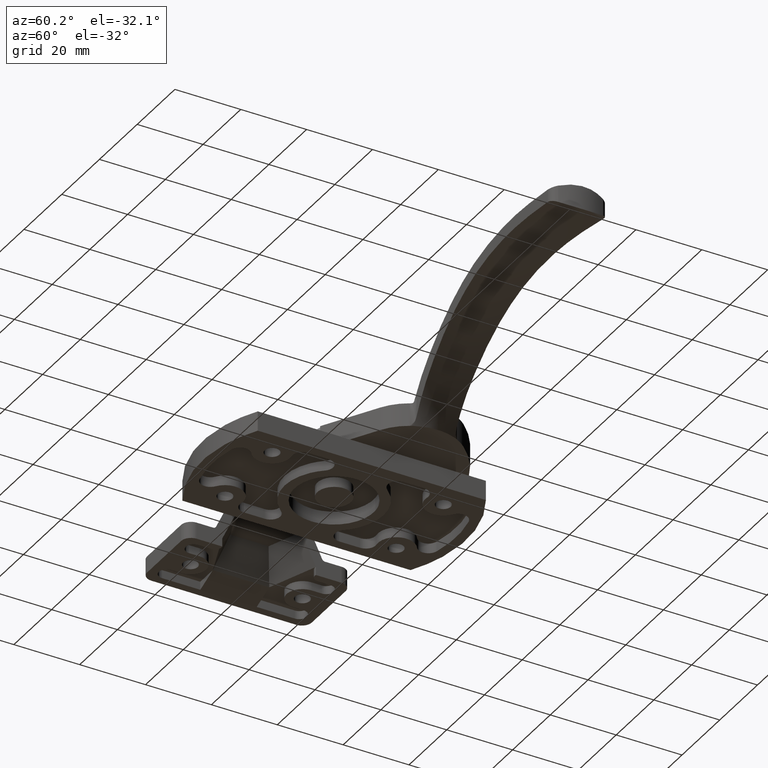
[diagram: clean part render]
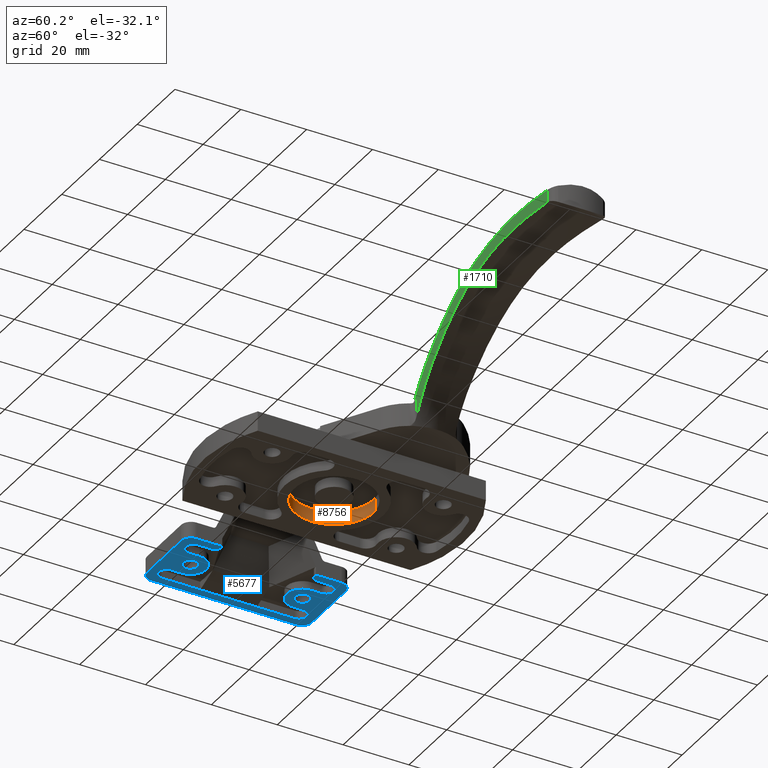
[diagram: same view with three faces highlighted in distinct colors, each labeled with its STEP entity id]
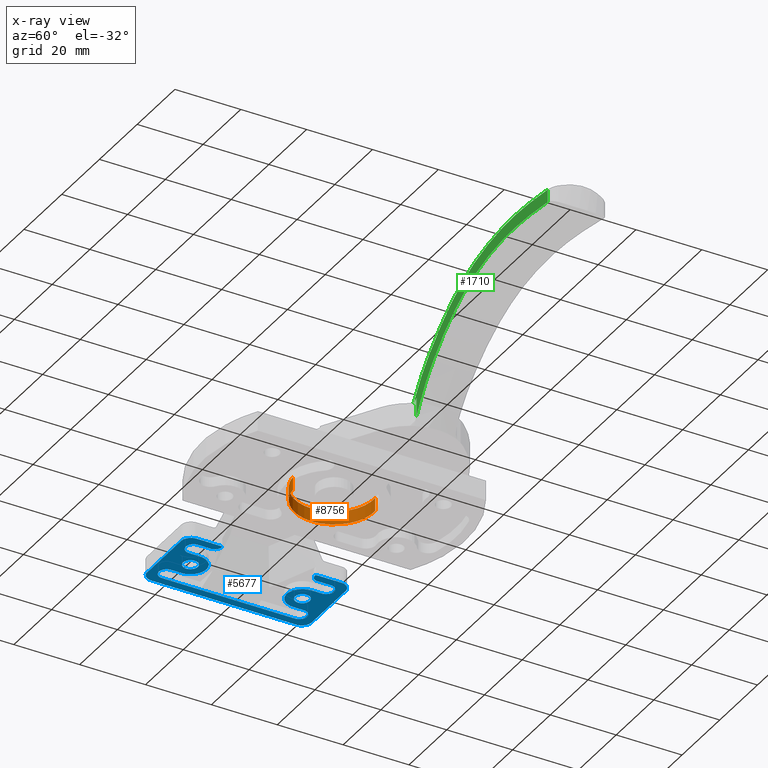
[diagram: x-ray of the same camera — body ghosted, the three highlighted faces saturated]
A machine part, auxiliary view with three faces highlighted in distinct colors.
The next image is the same camera in x-ray (body ghosted, the three faces saturated) — at least one of them is partly hidden behind the body in this view.
Their STEP definitions:

[orange] entity #8756 — the highlighted face is a freeform B-spline surface patch.
#8595=CARTESIAN_POINT('',(0.941509148841182,11.963008004789110,4.0));
#8596=VERTEX_POINT('',#8595);
#8610=CARTESIAN_POINT('',(0.941509148841184,11.963008004789110,2.081668E-017));
#8611=VERTEX_POINT('',#8610);
#8612=CARTESIAN_POINT('',(0.941509148841182,11.963008004789110,4.0));
#8613=CARTESIAN_POINT('',(0.941509148841184,11.963008004789110,2.081668E-017));
#8614=QUASI_UNIFORM_CURVE('',1,(#8612,#8613),.UNSPECIFIED.,.F.,.U.);
#8615=EDGE_CURVE('',#8596,#8611,#8614,.T.);
#8632=CARTESIAN_POINT('',(-0.941509148841184,-11.963008004789110,2.081668E-017));
#8633=VERTEX_POINT('',#8632);
#8649=CARTESIAN_POINT('',(-0.941509148841180,-11.963008004789110,4.0));
#8650=VERTEX_POINT('',#8649);
#8651=CARTESIAN_POINT('',(-0.941509148841180,-11.963008004789110,4.0));
#8652=CARTESIAN_POINT('',(-0.941509148841184,-11.963008004789110,2.081668E-017));
#8653=QUASI_UNIFORM_CURVE('',1,(#8651,#8652),.UNSPECIFIED.,.F.,.U.);
#8654=EDGE_CURVE('',#8650,#8633,#8653,.T.);
#8674=CARTESIAN_POINT('',(-0.941509148734146,-11.963008004797530,4.100000000000000));
#8675=CARTESIAN_POINT('',(-12.904517153531678,-11.021498856063385,4.100000000000000));
#8676=CARTESIAN_POINT('',(-11.963008004797530,0.941509148734146,4.100000000000000));
#8677=CARTESIAN_POINT('',(-11.021498856063385,12.904517153531678,4.100000000000000));
#8678=CARTESIAN_POINT('',(0.941509148734146,11.963008004797530,4.100000000000000));
#8679=CARTESIAN_POINT('',(-0.941509148734146,-11.963008004797530,-0.102500000000000));
#8680=CARTESIAN_POINT('',(-12.904517153531678,-11.021498856063385,-0.102500000000000));
#8681=CARTESIAN_POINT('',(-11.963008004797530,0.941509148734146,-0.102500000000000));
#8682=CARTESIAN_POINT('',(-11.021498856063385,12.904517153531678,-0.102500000000000));
#8683=CARTESIAN_POINT('',(0.941509148734146,11.963008004797530,-0.102500000000000));
#8691=(BOUNDED_SURFACE()B_SPLINE_SURFACE(2,1,((#8674,#8679),(#8675,#8680),(#8676,#8681),(#8677,#8682),(#8678,#8683)),.UNSPECIFIED.,.F.,.F.,.U.)B_SPLINE_SURFACE_WITH_KNOTS((3,2,3),(2,2),(0.0,19.882250993908560,39.764501987817120),(0.0,4.202500000000000),.UNSPECIFIED.)GEOMETRIC_REPRESENTATION_ITEM()RATIONAL_B_SPLINE_SURFACE(((1.0,1.0),(0.707106781186548,0.707106781186548),(1.0,1.0),(0.707106781186548,0.707106781186548),(1.0,1.0)))REPRESENTATION_ITEM('')SURFACE());
#8692=CARTESIAN_POINT('',(-12.0,0.0,4.0));
#8693=VERTEX_POINT('',#8692);
#8694=CARTESIAN_POINT('',(0.941509148841182,11.963008004789106,4.0));
#8695=CARTESIAN_POINT('',(0.471481284199572,11.999999999999998,4.0));
#8696=CARTESIAN_POINT('',(0.0,12.0,4.0));
#8697=CARTESIAN_POINT('',(-12.0,12.0,4.000000000000000));
#8698=CARTESIAN_POINT('',(-12.0,0.0,4.0));
#8706=(BOUNDED_CURVE()B_SPLINE_CURVE(2,(#8694,#8695,#8696,#8697,#8698),.UNSPECIFIED.,.F.,.U.)B_SPLINE_CURVE_WITH_KNOTS((3,2,3),(0.236331300629699,0.250000000000000,0.500000000000000),.UNSPECIFIED.)CURVE()GEOMETRIC_REPRESENTATION_ITEM()RATIONAL_B_SPLINE_CURVE((0.969723356165414,0.983986122577757,1.0,0.707106781186548,1.0))REPRESENTATION_ITEM(''));
#8707=EDGE_CURVE('',#8596,#8693,#8706,.T.);
#8708=ORIENTED_EDGE('',*,*,#8707,.T.);
#8709=CARTESIAN_POINT('',(-12.0,0.0,4.0));
#8710=CARTESIAN_POINT('',(-12.000000000000002,-11.092685899699395,4.0));
#8711=CARTESIAN_POINT('',(-0.941509148841180,-11.963008004789106,4.000000000000001));
#8719=(BOUNDED_CURVE()B_SPLINE_CURVE(2,(#8709,#8710,#8711),.UNSPECIFIED.,.F.,.U.)B_SPLINE_CURVE_WITH_KNOTS((3,3),(0.500000000000000,0.736331300629700),.UNSPECIFIED.)CURVE()GEOMETRIC_REPRESENTATION_ITEM()RATIONAL_B_SPLINE_CURVE((1.0,0.723120658608790,0.969723356165414))REPRESENTATION_ITEM(''));
#8720=EDGE_CURVE('',#8693,#8650,#8719,.T.);
#8721=ORIENTED_EDGE('',*,*,#8720,.T.);
#8722=ORIENTED_EDGE('',*,*,#8654,.T.);
#8723=CARTESIAN_POINT('',(-12.0,0.0,0.0));
#8724=VERTEX_POINT('',#8723);
#8725=CARTESIAN_POINT('',(-12.0,0.0,0.0));
#8726=CARTESIAN_POINT('',(-12.000000000000002,-11.092685899699395,0.0));
#8727=CARTESIAN_POINT('',(-0.941509148841184,-11.963008004789106,2.081668E-017));
#8735=(BOUNDED_CURVE()B_SPLINE_CURVE(2,(#8725,#8726,#8727),.UNSPECIFIED.,.F.,.U.)B_SPLINE_CURVE_WITH_KNOTS((3,3),(0.500000000000000,0.736331300629700),.UNSPECIFIED.)CURVE()GEOMETRIC_REPRESENTATION_ITEM()RATIONAL_B_SPLINE_CURVE((1.0,0.723120658608790,0.969723356165414))REPRESENTATION_ITEM(''));
#8736=EDGE_CURVE('',#8724,#8633,#8735,.T.);
#8737=ORIENTED_EDGE('',*,*,#8736,.F.);
#8738=CARTESIAN_POINT('',(0.941509148841184,11.963008004789106,2.081668E-017));
#8739=CARTESIAN_POINT('',(0.471481284199573,11.999999999999998,0.0));
#8740=CARTESIAN_POINT('',(0.0,12.0,0.0));
#8741=CARTESIAN_POINT('',(-12.0,12.0,0.0));
#8742=CARTESIAN_POINT('',(-12.0,0.0,0.0));
#8750=(BOUNDED_CURVE()B_SPLINE_CURVE(2,(#8738,#8739,#8740,#8741,#8742),.UNSPECIFIED.,.F.,.U.)B_SPLINE_CURVE_WITH_KNOTS((3,2,3),(0.236331300629699,0.250000000000000,0.500000000000000),.UNSPECIFIED.)CURVE()GEOMETRIC_REPRESENTATION_ITEM()RATIONAL_B_SPLINE_CURVE((0.969723356165414,0.983986122577757,1.0,0.707106781186548,1.0))REPRESENTATION_ITEM(''));
#8751=EDGE_CURVE('',#8611,#8724,#8750,.T.);
#8752=ORIENTED_EDGE('',*,*,#8751,.F.);
#8753=ORIENTED_EDGE('',*,*,#8615,.F.);
#8754=EDGE_LOOP('',(#8708,#8721,#8722,#8737,#8752,#8753));
#8755=FACE_OUTER_BOUND('',#8754,.T.);
#8756=ADVANCED_FACE('',(#8755),#8691,.F.);

[blue] entity #5677 — the highlighted face is a freeform B-spline surface patch.
#2646=CARTESIAN_POINT('',(-46.234422971808662,14.765728565707141,-8.518285E-017));
#2647=VERTEX_POINT('',#2646);
#2653=CARTESIAN_POINT('',(-48.750000000000000,17.0,0.0));
#2654=VERTEX_POINT('',#2653);
#2655=CARTESIAN_POINT('',(-46.234422971808662,14.765728565707150,-8.518285E-017));
#2656=CARTESIAN_POINT('',(-46.366745730567317,14.750000000000007,0.0));
#2657=CARTESIAN_POINT('',(-46.500000000000000,14.750000000000000,0.0));
#2658=CARTESIAN_POINT('',(-48.750000000000007,14.750000000000007,0.0));
#2659=CARTESIAN_POINT('',(-48.750000000000000,17.0,0.0));
#2667=(BOUNDED_CURVE()B_SPLINE_CURVE(2,(#2655,#2656,#2657,#2658,#2659),.UNSPECIFIED.,.F.,.U.)B_SPLINE_CURVE_WITH_KNOTS((3,2,3),(0.229562473483326,0.250000000000000,0.500000000000000),.UNSPECIFIED.)CURVE()GEOMETRIC_REPRESENTATION_ITEM()RATIONAL_B_SPLINE_CURVE((0.956026754124540,0.976055948295784,1.0,0.707106781186547,1.0))REPRESENTATION_ITEM(''));
#2668=EDGE_CURVE('',#2647,#2654,#2667,.T.);
#2670=CARTESIAN_POINT('',(-46.637359214265118,19.245803296430140,-8.326673E-017));
#2671=VERTEX_POINT('',#2670);
#2672=CARTESIAN_POINT('',(-48.750000000000000,17.0,0.0));
#2673=CARTESIAN_POINT('',(-48.750000000000000,19.116588649949211,0.0));
#2674=CARTESIAN_POINT('',(-46.637359214265111,19.245803296430143,-8.326673E-017));
#2682=(BOUNDED_CURVE()B_SPLINE_CURVE(2,(#2672,#2673,#2674),.UNSPECIFIED.,.F.,.U.)B_SPLINE_CURVE_WITH_KNOTS((3,3),(0.500000000000000,0.739332962194074),.UNSPECIFIED.)CURVE()GEOMETRIC_REPRESENTATION_ITEM()RATIONAL_B_SPLINE_CURVE((1.0,0.719603993339277,0.976072041570556))REPRESENTATION_ITEM(''));
#2683=EDGE_CURVE('',#2654,#2671,#2682,.T.);
#2772=CARTESIAN_POINT('',(-44.250000000000000,17.0,0.0));
#2773=VERTEX_POINT('',#2772);
#2774=CARTESIAN_POINT('',(-46.637359214265118,19.245803296430136,-8.326673E-017));
#2775=CARTESIAN_POINT('',(-46.568743717734385,19.249999999999993,0.0));
#2776=CARTESIAN_POINT('',(-46.500000000000000,19.250000000000000,0.0));
#2777=CARTESIAN_POINT('',(-44.250000000000007,19.250000000000000,0.0));
#2778=CARTESIAN_POINT('',(-44.250000000000000,17.0,0.0));
#2786=(BOUNDED_CURVE()B_SPLINE_CURVE(2,(#2774,#2775,#2776,#2777,#2778),.UNSPECIFIED.,.F.,.U.)B_SPLINE_CURVE_WITH_KNOTS((3,2,3),(0.739332962194075,0.750000000000000,1.0),.UNSPECIFIED.)CURVE()GEOMETRIC_REPRESENTATION_ITEM()RATIONAL_B_SPLINE_CURVE((0.976072041570556,0.987502787847271,1.0,0.707106781186547,1.0))REPRESENTATION_ITEM(''));
#2787=EDGE_CURVE('',#2671,#2773,#2786,.T.);
#2789=CARTESIAN_POINT('',(-44.250000000000000,17.0,0.0));
#2790=CARTESIAN_POINT('',(-44.249999999999993,15.001607316994265,0.0));
#2791=CARTESIAN_POINT('',(-46.234422971808662,14.765728565707141,-8.518285E-017));
#2799=(BOUNDED_CURVE()B_SPLINE_CURVE(2,(#2789,#2790,#2791),.UNSPECIFIED.,.F.,.U.)B_SPLINE_CURVE_WITH_KNOTS((3,3),(0.0,0.229562473483326),.UNSPECIFIED.)CURVE()GEOMETRIC_REPRESENTATION_ITEM()RATIONAL_B_SPLINE_CURVE((1.0,0.731050832890764,0.956026754124540))REPRESENTATION_ITEM(''));
#2800=EDGE_CURVE('',#2773,#2647,#2799,.T.);
#2974=CARTESIAN_POINT('',(-46.323467033540368,-14.756935999184829,-8.326673E-017));
#2975=VERTEX_POINT('',#2974);
#2981=CARTESIAN_POINT('',(-44.250000000000000,-17.0,0.0));
#2982=VERTEX_POINT('',#2981);
#2983=CARTESIAN_POINT('',(-44.250000000000000,-17.0,0.0));
#2984=CARTESIAN_POINT('',(-44.249999999999993,-14.920121395763180,0.0));
#2985=CARTESIAN_POINT('',(-46.323467033540375,-14.756935999184826,-8.326673E-017));
#2993=(BOUNDED_CURVE()B_SPLINE_CURVE(2,(#2983,#2984,#2985),.UNSPECIFIED.,.F.,.U.)B_SPLINE_CURVE_WITH_KNOTS((3,3),(0.0,0.236331300468916),.UNSPECIFIED.)CURVE()GEOMETRIC_REPRESENTATION_ITEM()RATIONAL_B_SPLINE_CURVE((1.0,0.723120658797160,0.969723355829870))REPRESENTATION_ITEM(''));
#2994=EDGE_CURVE('',#2982,#2975,#2993,.T.);
#2996=CARTESIAN_POINT('',(-46.676532966459632,-19.243064000815171,-8.326673E-017));
#2997=VERTEX_POINT('',#2996);
#2998=CARTESIAN_POINT('',(-46.676532966459639,-19.243064000815171,-8.326673E-017));
#2999=CARTESIAN_POINT('',(-46.588402741844213,-19.249999999999996,0.0));
#3000=CARTESIAN_POINT('',(-46.500000000000000,-19.250000000000000,0.0));
#3001=CARTESIAN_POINT('',(-44.250000000000007,-19.250000000000000,0.0));
#3002=CARTESIAN_POINT('',(-44.250000000000000,-17.0,0.0));
#3010=(BOUNDED_CURVE()B_SPLINE_CURVE(2,(#2998,#2999,#3000,#3001,#3002),.UNSPECIFIED.,.F.,.U.)B_SPLINE_CURVE_WITH_KNOTS((3,2,3),(0.736331300468916,0.750000000000000,1.0),.UNSPECIFIED.)CURVE()GEOMETRIC_REPRESENTATION_ITEM()RATIONAL_B_SPLINE_CURVE((0.969723355829871,0.983986122389388,1.0,0.707106781186547,1.0))REPRESENTATION_ITEM(''));
#3011=EDGE_CURVE('',#2997,#2982,#3010,.T.);
#3117=CARTESIAN_POINT('',(-48.750000000000000,-17.0,0.0));
#3118=VERTEX_POINT('',#3117);
#3119=CARTESIAN_POINT('',(-48.750000000000000,-17.0,0.0));
#3120=CARTESIAN_POINT('',(-48.750000000000000,-19.079878604236846,0.0));
#3121=CARTESIAN_POINT('',(-46.676532966459639,-19.243064000815171,-8.326673E-017));
#3129=(BOUNDED_CURVE()B_SPLINE_CURVE(2,(#3119,#3120,#3121),.UNSPECIFIED.,.F.,.U.)B_SPLINE_CURVE_WITH_KNOTS((3,3),(0.500000000000000,0.736331300468917),.UNSPECIFIED.)CURVE()GEOMETRIC_REPRESENTATION_ITEM()RATIONAL_B_SPLINE_CURVE((1.0,0.723120658797159,0.969723355829874))REPRESENTATION_ITEM(''));
#3130=EDGE_CURVE('',#3118,#2997,#3129,.T.);
#3132=CARTESIAN_POINT('',(-46.323467033540368,-14.756935999184833,-8.326673E-017));
#3133=CARTESIAN_POINT('',(-46.411597258155780,-14.750000000000000,0.0));
#3134=CARTESIAN_POINT('',(-46.500000000000000,-14.750000000000000,0.0));
#3135=CARTESIAN_POINT('',(-48.750000000000007,-14.750000000000007,0.0));
#3136=CARTESIAN_POINT('',(-48.750000000000000,-17.0,0.0));
#3144=(BOUNDED_CURVE()B_SPLINE_CURVE(2,(#3132,#3133,#3134,#3135,#3136),.UNSPECIFIED.,.F.,.U.)B_SPLINE_CURVE_WITH_KNOTS((3,2,3),(0.236331300468916,0.250000000000000,0.500000000000000),.UNSPECIFIED.)CURVE()GEOMETRIC_REPRESENTATION_ITEM()RATIONAL_B_SPLINE_CURVE((0.969723355829871,0.983986122389387,1.0,0.707106781186547,1.0))REPRESENTATION_ITEM(''));
#3145=EDGE_CURVE('',#2975,#3118,#3144,.T.);
#3395=CARTESIAN_POINT('',(-56.0,-8.567146208505172,0.0));
#3396=VERTEX_POINT('',#3395);
#3424=CARTESIAN_POINT('',(-56.0,8.567146208505200,0.0));
#3425=VERTEX_POINT('',#3424);
#3445=CARTESIAN_POINT('',(-56.0,8.567146208505200,0.0));
#3446=CARTESIAN_POINT('',(-56.0,-8.567146208505172,0.0));
#3447=QUASI_UNIFORM_CURVE('',1,(#3445,#3446),.UNSPECIFIED.,.F.,.U.);
#3448=EDGE_CURVE('',#3425,#3396,#3447,.T.);
#4740=CARTESIAN_POINT('',(-56.0,-20.149999999999999,0.0));
#4741=VERTEX_POINT('',#4740);
#4742=CARTESIAN_POINT('',(-51.299999999999997,-20.149999999999999,0.0));
#4743=VERTEX_POINT('',#4742);
#4744=CARTESIAN_POINT('',(-56.0,-20.149999999999999,0.0));
#4745=CARTESIAN_POINT('',(-55.999999999999986,-22.500000000000004,0.0));
#4746=CARTESIAN_POINT('',(-53.650000000000013,-22.500000000000000,0.0));
#4747=CARTESIAN_POINT('',(-51.300000000000011,-22.500000000000004,0.0));
#4748=CARTESIAN_POINT('',(-51.299999999999997,-20.149999999999999,0.0));
#4756=(BOUNDED_CURVE()B_SPLINE_CURVE(2,(#4744,#4745,#4746,#4747,#4748),.UNSPECIFIED.,.F.,.U.)B_SPLINE_CURVE_WITH_KNOTS((3,2,3),(0.0,0.500000000000000,1.0),.UNSPECIFIED.)CURVE()GEOMETRIC_REPRESENTATION_ITEM()RATIONAL_B_SPLINE_CURVE((1.0,0.707106781186547,1.0,0.707106781186547,1.0))REPRESENTATION_ITEM(''));
#4757=EDGE_CURVE('',#4741,#4743,#4756,.T.);
#4796=CARTESIAN_POINT('',(-56.0,20.149999999999999,0.0));
#4797=VERTEX_POINT('',#4796);
#4798=CARTESIAN_POINT('',(-56.0,20.149999999999999,0.0));
#4799=CARTESIAN_POINT('',(-56.0,8.567146208505200,0.0));
#4800=QUASI_UNIFORM_CURVE('',1,(#4798,#4799),.UNSPECIFIED.,.F.,.U.);
#4801=EDGE_CURVE('',#4797,#3425,#4800,.T.);
#4831=CARTESIAN_POINT('',(-51.299999999999997,20.149999999999999,0.0));
#4832=VERTEX_POINT('',#4831);
#4833=CARTESIAN_POINT('',(-51.299999999999997,20.149999999999999,0.0));
#4834=CARTESIAN_POINT('',(-51.300000000000011,22.500000000000004,0.0));
#4835=CARTESIAN_POINT('',(-53.650000000000013,22.500000000000000,0.0));
#4836=CARTESIAN_POINT('',(-55.999999999999986,22.500000000000004,0.0));
#4837=CARTESIAN_POINT('',(-56.0,20.149999999999999,0.0));
#4845=(BOUNDED_CURVE()B_SPLINE_CURVE(2,(#4833,#4834,#4835,#4836,#4837),.UNSPECIFIED.,.F.,.U.)B_SPLINE_CURVE_WITH_KNOTS((3,2,3),(0.0,0.500000000000000,1.0),.UNSPECIFIED.)CURVE()GEOMETRIC_REPRESENTATION_ITEM()RATIONAL_B_SPLINE_CURVE((1.0,0.707106781186547,1.0,0.707106781186547,1.0))REPRESENTATION_ITEM(''));
#4846=EDGE_CURVE('',#4832,#4797,#4845,.T.);
#4863=CARTESIAN_POINT('',(-51.299999999999997,17.0,0.0));
#4864=VERTEX_POINT('',#4863);
#4865=CARTESIAN_POINT('',(-51.299999999999997,17.0,0.0));
#4866=CARTESIAN_POINT('',(-51.299999999999997,20.149999999999999,0.0));
#4867=QUASI_UNIFORM_CURVE('',1,(#4865,#4866),.UNSPECIFIED.,.F.,.U.);
#4868=EDGE_CURVE('',#4864,#4832,#4867,.T.);
#4898=CARTESIAN_POINT('',(-41.700000000000003,17.0,0.0));
#4899=VERTEX_POINT('',#4898);
#4900=CARTESIAN_POINT('',(-51.299999999999997,17.0,0.0));
#4901=CARTESIAN_POINT('',(-51.299999999999990,12.200000000000003,0.0));
#4902=CARTESIAN_POINT('',(-46.500000000000000,12.199999999999999,0.0));
#4903=CARTESIAN_POINT('',(-41.700000000000003,12.200000000000003,0.0));
#4904=CARTESIAN_POINT('',(-41.700000000000003,17.0,0.0));
#4912=(BOUNDED_CURVE()B_SPLINE_CURVE(2,(#4900,#4901,#4902,#4903,#4904),.UNSPECIFIED.,.F.,.U.)B_SPLINE_CURVE_WITH_KNOTS((3,2,3),(0.0,0.500000000000000,1.0),.UNSPECIFIED.)CURVE()GEOMETRIC_REPRESENTATION_ITEM()RATIONAL_B_SPLINE_CURVE((1.0,0.707106781186547,1.0,0.707106781186547,1.0))REPRESENTATION_ITEM(''));
#4913=EDGE_CURVE('',#4864,#4899,#4912,.T.);
#4930=CARTESIAN_POINT('',(-41.700000000000003,20.149999999999999,0.0));
#4931=VERTEX_POINT('',#4930);
#4932=CARTESIAN_POINT('',(-41.700000000000003,20.149999999999999,0.0));
#4933=CARTESIAN_POINT('',(-41.700000000000003,17.0,0.0));
#4934=QUASI_UNIFORM_CURVE('',1,(#4932,#4933),.UNSPECIFIED.,.F.,.U.);
#4935=EDGE_CURVE('',#4931,#4899,#4934,.T.);
#4965=CARTESIAN_POINT('',(-37.0,20.149999999999999,0.0));
#4966=VERTEX_POINT('',#4965);
#4967=CARTESIAN_POINT('',(-37.000000000000007,20.149999999999999,0.0));
#4968=CARTESIAN_POINT('',(-37.000000000000007,22.500000000000004,0.0));
#4969=CARTESIAN_POINT('',(-39.350000000000001,22.500000000000000,0.0));
#4970=CARTESIAN_POINT('',(-41.700000000000003,22.500000000000004,0.0));
#4971=CARTESIAN_POINT('',(-41.700000000000003,20.149999999999999,0.0));
#4979=(BOUNDED_CURVE()B_SPLINE_CURVE(2,(#4967,#4968,#4969,#4970,#4971),.UNSPECIFIED.,.F.,.U.)B_SPLINE_CURVE_WITH_KNOTS((3,2,3),(0.0,0.500000000000000,1.0),.UNSPECIFIED.)CURVE()GEOMETRIC_REPRESENTATION_ITEM()RATIONAL_B_SPLINE_CURVE((1.0,0.707106781186547,1.0,0.707106781186547,1.0))REPRESENTATION_ITEM(''));
#4980=EDGE_CURVE('',#4966,#4931,#4979,.T.);
#4997=CARTESIAN_POINT('',(-37.0,16.157244622616751,0.0));
#4998=VERTEX_POINT('',#4997);
#4999=CARTESIAN_POINT('',(-37.0,16.157244622616751,0.0));
#5000=CARTESIAN_POINT('',(-37.0,20.149999999999999,0.0));
#5001=QUASI_UNIFORM_CURVE('',1,(#4999,#5000),.UNSPECIFIED.,.F.,.U.);
#5002=EDGE_CURVE('',#4998,#4966,#5001,.T.);
#5028=CARTESIAN_POINT('',(-34.500000000000000,14.220752949513040,0.0));
#5029=VERTEX_POINT('',#5028);
#5030=CARTESIAN_POINT('',(-37.000000000000007,16.157244622616751,0.0));
#5031=CARTESIAN_POINT('',(-37.000000000000014,15.176615832965018,0.0));
#5032=CARTESIAN_POINT('',(-36.224744871391593,14.576105792532561,0.0));
#5033=CARTESIAN_POINT('',(-35.449489742783186,13.975595752100112,0.0));
#5034=CARTESIAN_POINT('',(-34.500000000000000,14.220752949513040,0.0));
#5042=(BOUNDED_CURVE()B_SPLINE_CURVE(2,(#5030,#5031,#5032,#5033,#5034),.UNSPECIFIED.,.F.,.U.)B_SPLINE_CURVE_WITH_KNOTS((3,2,3),(0.0,0.500000000000000,1.0),.UNSPECIFIED.)CURVE()GEOMETRIC_REPRESENTATION_ITEM()RATIONAL_B_SPLINE_CURVE((1.0,0.897878732261711,1.0,0.897878732261711,1.0))REPRESENTATION_ITEM(''));
#5043=EDGE_CURVE('',#4998,#5029,#5042,.T.);
#5069=CARTESIAN_POINT('',(-34.500000000000000,-14.220752949512899,0.0));
#5070=VERTEX_POINT('',#5069);
#5071=CARTESIAN_POINT('',(-37.0,-16.157244622616599,0.0));
#5072=VERTEX_POINT('',#5071);
#5073=CARTESIAN_POINT('',(-34.500000000000000,-14.220752949512891,0.0));
#5074=CARTESIAN_POINT('',(-35.449489742783193,-13.975595752099965,0.0));
#5075=CARTESIAN_POINT('',(-36.224744871391593,-14.576105792532410,0.0));
#5076=CARTESIAN_POINT('',(-37.000000000000007,-15.176615832964861,0.0));
#5077=CARTESIAN_POINT('',(-37.000000000000007,-16.157244622616599,0.0));
#5085=(BOUNDED_CURVE()B_SPLINE_CURVE(2,(#5073,#5074,#5075,#5076,#5077),.UNSPECIFIED.,.F.,.U.)B_SPLINE_CURVE_WITH_KNOTS((3,2,3),(0.0,0.500000000000000,1.0),.UNSPECIFIED.)CURVE()GEOMETRIC_REPRESENTATION_ITEM()RATIONAL_B_SPLINE_CURVE((1.0,0.897878732261711,1.0,0.897878732261711,1.0))REPRESENTATION_ITEM(''));
#5086=EDGE_CURVE('',#5070,#5072,#5085,.T.);
#5123=CARTESIAN_POINT('',(-37.0,-20.149999999999999,0.0));
#5124=VERTEX_POINT('',#5123);
#5125=CARTESIAN_POINT('',(-37.0,-20.149999999999999,0.0));
#5126=CARTESIAN_POINT('',(-37.0,-16.157244622616599,0.0));
#5127=QUASI_UNIFORM_CURVE('',1,(#5125,#5126),.UNSPECIFIED.,.F.,.U.);
#5128=EDGE_CURVE('',#5124,#5072,#5127,.T.);
#5164=CARTESIAN_POINT('',(-41.700000000000003,-20.149999999999999,0.0));
#5165=VERTEX_POINT('',#5164);
#5166=CARTESIAN_POINT('',(-41.700000000000003,-20.149999999999999,0.0));
#5167=CARTESIAN_POINT('',(-41.700000000000003,-22.500000000000004,0.0));
#5168=CARTESIAN_POINT('',(-39.350000000000001,-22.500000000000000,0.0));
#5169=CARTESIAN_POINT('',(-37.000000000000007,-22.500000000000004,0.0));
#5170=CARTESIAN_POINT('',(-37.000000000000007,-20.149999999999999,0.0));
#5178=(BOUNDED_CURVE()B_SPLINE_CURVE(2,(#5166,#5167,#5168,#5169,#5170),.UNSPECIFIED.,.F.,.U.)B_SPLINE_CURVE_WITH_KNOTS((3,2,3),(0.0,0.500000000000000,1.0),.UNSPECIFIED.)CURVE()GEOMETRIC_REPRESENTATION_ITEM()RATIONAL_B_SPLINE_CURVE((1.0,0.707106781186547,1.0,0.707106781186547,1.0))REPRESENTATION_ITEM(''));
#5179=EDGE_CURVE('',#5165,#5124,#5178,.T.);
#5212=CARTESIAN_POINT('',(-41.700000000000003,-17.0,0.0));
#5213=VERTEX_POINT('',#5212);
#5214=CARTESIAN_POINT('',(-41.700000000000003,-17.0,0.0));
#5215=CARTESIAN_POINT('',(-41.700000000000003,-20.149999999999999,0.0));
#5216=QUASI_UNIFORM_CURVE('',1,(#5214,#5215),.UNSPECIFIED.,.F.,.U.);
#5217=EDGE_CURVE('',#5213,#5165,#5216,.T.);
#5253=CARTESIAN_POINT('',(-51.299999999999997,-17.0,0.0));
#5254=VERTEX_POINT('',#5253);
#5255=CARTESIAN_POINT('',(-41.700000000000003,-17.0,0.0));
#5256=CARTESIAN_POINT('',(-41.700000000000003,-12.200000000000003,0.0));
#5257=CARTESIAN_POINT('',(-46.500000000000000,-12.199999999999999,0.0));
#5258=CARTESIAN_POINT('',(-51.299999999999990,-12.200000000000003,0.0));
#5259=CARTESIAN_POINT('',(-51.299999999999997,-17.0,0.0));
#5267=(BOUNDED_CURVE()B_SPLINE_CURVE(2,(#5255,#5256,#5257,#5258,#5259),.UNSPECIFIED.,.F.,.U.)B_SPLINE_CURVE_WITH_KNOTS((3,2,3),(0.0,0.500000000000000,1.0),.UNSPECIFIED.)CURVE()GEOMETRIC_REPRESENTATION_ITEM()RATIONAL_B_SPLINE_CURVE((1.0,0.707106781186547,1.0,0.707106781186547,1.0))REPRESENTATION_ITEM(''));
#5268=EDGE_CURVE('',#5213,#5254,#5267,.T.);
#5301=CARTESIAN_POINT('',(-51.299999999999997,-20.149999999999999,0.0));
#5302=CARTESIAN_POINT('',(-51.299999999999997,-17.0,0.0));
#5303=QUASI_UNIFORM_CURVE('',1,(#5301,#5302),.UNSPECIFIED.,.F.,.U.);
#5304=EDGE_CURVE('',#4743,#5254,#5303,.T.);
#5330=CARTESIAN_POINT('',(-34.500000000000000,22.0,0.0));
#5331=VERTEX_POINT('',#5330);
#5332=CARTESIAN_POINT('',(-37.500000000000000,25.0,0.0));
#5333=VERTEX_POINT('',#5332);
#5334=CARTESIAN_POINT('',(-34.499999999999993,22.0,0.0));
#5335=CARTESIAN_POINT('',(-34.500000000000000,25.0,0.0));
#5336=CARTESIAN_POINT('',(-37.500000000000000,25.0,0.0));
#5344=(BOUNDED_CURVE()B_SPLINE_CURVE(2,(#5334,#5335,#5336),.UNSPECIFIED.,.F.,.U.)CURVE()GEOMETRIC_REPRESENTATION_ITEM()QUASI_UNIFORM_CURVE()RATIONAL_B_SPLINE_CURVE((1.0,0.707106781186548,1.0))REPRESENTATION_ITEM(''));
#5345=EDGE_CURVE('',#5331,#5333,#5344,.T.);
#5382=CARTESIAN_POINT('',(-55.500000000000000,25.0,0.0));
#5383=VERTEX_POINT('',#5382);
#5384=CARTESIAN_POINT('',(-55.500000000000000,25.0,0.0));
#5385=CARTESIAN_POINT('',(-37.500000000000000,25.0,0.0));
#5386=QUASI_UNIFORM_CURVE('',1,(#5384,#5385),.UNSPECIFIED.,.F.,.U.);
#5387=EDGE_CURVE('',#5383,#5333,#5386,.T.);
#5419=CARTESIAN_POINT('',(-58.500000000000000,22.0,0.0));
#5420=VERTEX_POINT('',#5419);
#5421=CARTESIAN_POINT('',(-55.500000000000000,25.0,0.0));
#5422=CARTESIAN_POINT('',(-58.499999999999993,25.0,0.0));
#5423=CARTESIAN_POINT('',(-58.500000000000000,22.0,0.0));
#5431=(BOUNDED_CURVE()B_SPLINE_CURVE(2,(#5421,#5422,#5423),.UNSPECIFIED.,.F.,.U.)CURVE()GEOMETRIC_REPRESENTATION_ITEM()QUASI_UNIFORM_CURVE()RATIONAL_B_SPLINE_CURVE((1.0,0.707106781186548,1.0))REPRESENTATION_ITEM(''));
#5432=EDGE_CURVE('',#5383,#5420,#5431,.T.);
#5463=CARTESIAN_POINT('',(-58.500000000000000,-22.0,0.0));
#5464=VERTEX_POINT('',#5463);
#5465=CARTESIAN_POINT('',(-58.500000000000000,-22.0,0.0));
#5466=CARTESIAN_POINT('',(-58.500000000000000,22.0,0.0));
#5467=QUASI_UNIFORM_CURVE('',1,(#5465,#5466),.UNSPECIFIED.,.F.,.U.);
#5468=EDGE_CURVE('',#5464,#5420,#5467,.T.);
#5500=CARTESIAN_POINT('',(-55.500000000000000,-25.0,0.0));
#5501=VERTEX_POINT('',#5500);
#5502=CARTESIAN_POINT('',(-58.500000000000000,-22.0,0.0));
#5503=CARTESIAN_POINT('',(-58.499999999999993,-25.0,0.0));
#5504=CARTESIAN_POINT('',(-55.500000000000000,-25.0,0.0));
#5512=(BOUNDED_CURVE()B_SPLINE_CURVE(2,(#5502,#5503,#5504),.UNSPECIFIED.,.F.,.U.)CURVE()GEOMETRIC_REPRESENTATION_ITEM()QUASI_UNIFORM_CURVE()RATIONAL_B_SPLINE_CURVE((1.0,0.707106781186548,1.0))REPRESENTATION_ITEM(''));
#5513=EDGE_CURVE('',#5464,#5501,#5512,.T.);
#5544=CARTESIAN_POINT('',(-37.500000000000000,-25.0,0.0));
#5545=VERTEX_POINT('',#5544);
#5546=CARTESIAN_POINT('',(-37.500000000000000,-25.0,0.0));
#5547=CARTESIAN_POINT('',(-55.500000000000000,-25.0,0.0));
#5548=QUASI_UNIFORM_CURVE('',1,(#5546,#5547),.UNSPECIFIED.,.F.,.U.);
#5549=EDGE_CURVE('',#5545,#5501,#5548,.T.);
#5581=CARTESIAN_POINT('',(-34.500000000000000,-22.0,0.0));
#5582=VERTEX_POINT('',#5581);
#5583=CARTESIAN_POINT('',(-37.500000000000000,-25.0,0.0));
#5584=CARTESIAN_POINT('',(-34.500000000000000,-25.0,0.0));
#5585=CARTESIAN_POINT('',(-34.499999999999993,-22.0,0.0));
#5593=(BOUNDED_CURVE()B_SPLINE_CURVE(2,(#5583,#5584,#5585),.UNSPECIFIED.,.F.,.U.)CURVE()GEOMETRIC_REPRESENTATION_ITEM()QUASI_UNIFORM_CURVE()RATIONAL_B_SPLINE_CURVE((1.0,0.707106781186548,1.0))REPRESENTATION_ITEM(''));
#5594=EDGE_CURVE('',#5545,#5582,#5593,.T.);
#5620=CARTESIAN_POINT('',(-33.301200046516648,27.497499903090301,0.0));
#5621=CARTESIAN_POINT('',(-59.698800597213513,27.497499903090301,0.0));
#5622=CARTESIAN_POINT('',(-33.301200046516648,-27.497501244194812,0.0));
#5623=CARTESIAN_POINT('',(-59.698800597213513,-27.497501244194812,0.0));
#5624=B_SPLINE_SURFACE_WITH_KNOTS('',1,1,((#5620,#5622),(#5621,#5623)),.UNSPECIFIED.,.F.,.F.,.U.,(2,2),(2,2),(0.0,26.397600550696868),(0.0,54.995001147285109),.UNSPECIFIED.);
#5625=CARTESIAN_POINT('',(-34.500000000000000,-14.220752949512899,0.0));
#5626=CARTESIAN_POINT('',(-34.500000000000000,-22.0,0.0));
#5627=QUASI_UNIFORM_CURVE('',1,(#5625,#5626),.UNSPECIFIED.,.F.,.U.);
#5628=EDGE_CURVE('',#5070,#5582,#5627,.T.);
#5629=ORIENTED_EDGE('',*,*,#5628,.T.);
#5630=ORIENTED_EDGE('',*,*,#5594,.F.);
#5631=ORIENTED_EDGE('',*,*,#5549,.T.);
#5632=ORIENTED_EDGE('',*,*,#5513,.F.);
#5633=ORIENTED_EDGE('',*,*,#5468,.T.);
#5634=ORIENTED_EDGE('',*,*,#5432,.F.);
#5635=ORIENTED_EDGE('',*,*,#5387,.T.);
#5636=ORIENTED_EDGE('',*,*,#5345,.F.);
#5637=CARTESIAN_POINT('',(-34.500000000000000,22.0,0.0));
#5638=CARTESIAN_POINT('',(-34.500000000000000,14.220752949513040,0.0));
#5639=QUASI_UNIFORM_CURVE('',1,(#5637,#5638),.UNSPECIFIED.,.F.,.U.);
#5640=EDGE_CURVE('',#5331,#5029,#5639,.T.);
#5641=ORIENTED_EDGE('',*,*,#5640,.T.);
#5642=ORIENTED_EDGE('',*,*,#5043,.F.);
#5643=ORIENTED_EDGE('',*,*,#5002,.T.);
#5644=ORIENTED_EDGE('',*,*,#4980,.T.);
#5645=ORIENTED_EDGE('',*,*,#4935,.T.);
#5646=ORIENTED_EDGE('',*,*,#4913,.F.);
#5647=ORIENTED_EDGE('',*,*,#4868,.T.);
#5648=ORIENTED_EDGE('',*,*,#4846,.T.);
#5649=ORIENTED_EDGE('',*,*,#4801,.T.);
#5650=ORIENTED_EDGE('',*,*,#3448,.T.);
#5651=CARTESIAN_POINT('',(-56.0,-8.567146208505172,0.0));
#5652=CARTESIAN_POINT('',(-56.0,-20.149999999999999,0.0));
#5653=QUASI_UNIFORM_CURVE('',1,(#5651,#5652),.UNSPECIFIED.,.F.,.U.);
#5654=EDGE_CURVE('',#3396,#4741,#5653,.T.);
#5655=ORIENTED_EDGE('',*,*,#5654,.T.);
#5656=ORIENTED_EDGE('',*,*,#4757,.T.);
#5657=ORIENTED_EDGE('',*,*,#5304,.T.);
#5658=ORIENTED_EDGE('',*,*,#5268,.F.);
#5659=ORIENTED_EDGE('',*,*,#5217,.T.);
#5660=ORIENTED_EDGE('',*,*,#5179,.T.);
#5661=ORIENTED_EDGE('',*,*,#5128,.T.);
#5662=ORIENTED_EDGE('',*,*,#5086,.F.);
#5663=EDGE_LOOP('',(#5629,#5630,#5631,#5632,#5633,#5634,#5635,#5636,#5641,#5642,#5643,#5644,#5645,#5646,#5647,#5648,#5649,#5650,#5655,#5656,#5657,#5658,#5659,#5660,#5661,#5662));
#5664=FACE_OUTER_BOUND('',#5663,.T.);
#5665=ORIENTED_EDGE('',*,*,#3130,.T.);
#5666=ORIENTED_EDGE('',*,*,#3011,.T.);
#5667=ORIENTED_EDGE('',*,*,#2994,.T.);
#5668=ORIENTED_EDGE('',*,*,#3145,.T.);
#5669=EDGE_LOOP('',(#5665,#5666,#5667,#5668));
#5670=FACE_BOUND('',#5669,.T.);
#5671=ORIENTED_EDGE('',*,*,#2683,.F.);
#5672=ORIENTED_EDGE('',*,*,#2668,.F.);
#5673=ORIENTED_EDGE('',*,*,#2800,.F.);
#5674=ORIENTED_EDGE('',*,*,#2787,.F.);
#5675=EDGE_LOOP('',(#5671,#5672,#5673,#5674));
#5676=FACE_BOUND('',#5675,.T.);
#5677=ADVANCED_FACE('',(#5664,#5670,#5676),#5624,.F.);

[green] entity #1710 — the highlighted face is a freeform B-spline surface patch.
#248=CARTESIAN_POINT('',(106.995693267525400,3.557953618904915,39.520675751996450));
#249=VERTEX_POINT('',#248);
#277=CARTESIAN_POINT('',(106.995693267525400,3.557953618904915,35.690319769603249));
#278=VERTEX_POINT('',#277);
#279=CARTESIAN_POINT('',(106.995693267525400,3.557953618904915,35.690319769603249));
#280=CARTESIAN_POINT('',(106.995693267525400,3.557953618904915,39.520675751996450));
#281=QUASI_UNIFORM_CURVE('',1,(#279,#280),.UNSPECIFIED.,.F.,.U.);
#282=EDGE_CURVE('',#278,#249,#281,.T.);
#767=CARTESIAN_POINT('',(31.560553174417400,6.036958334936319,15.077443440430949));
#768=VERTEX_POINT('',#767);
#829=CARTESIAN_POINT('',(33.290832689962002,5.980096633220070,15.600000000000000));
#830=VERTEX_POINT('',#829);
#852=CARTESIAN_POINT('',(32.425692932189747,6.008527484078195,15.338721720215380));
#853=VERTEX_POINT('',#852);
#854=CARTESIAN_POINT('',(33.290832689962002,5.980096633220070,15.600000000000000));
#855=CARTESIAN_POINT('',(33.002452770704593,5.989573583506111,15.512907240071780));
#856=CARTESIAN_POINT('',(32.714072851447163,5.999050533792153,15.425814480143570));
#857=CARTESIAN_POINT('',(32.425692932189747,6.008527484078194,15.338721720215380));
#858=B_SPLINE_CURVE_WITH_KNOTS('',3,(#854,#855,#856,#857),.UNSPECIFIED.,.F.,.U.,(4,4),(0.159147813476962,0.246240573405147),.UNSPECIFIED.);
#859=EDGE_CURVE('',#830,#853,#858,.T.);
#861=CARTESIAN_POINT('',(32.425692932189747,6.008527484078194,15.338721720215380));
#862=CARTESIAN_POINT('',(32.137313012932331,6.018004434364236,15.251628960287180));
#863=CARTESIAN_POINT('',(31.848933093674908,6.027481384650278,15.164536200358990));
#864=CARTESIAN_POINT('',(31.560553174417400,6.036958334936319,15.077443440430949));
#865=B_SPLINE_CURVE_WITH_KNOTS('',3,(#861,#862,#863,#864),.UNSPECIFIED.,.F.,.U.,(4,4),(0.246240573405147,0.333333333333333),.UNSPECIFIED.);
#866=EDGE_CURVE('',#853,#768,#865,.T.);
#1186=CARTESIAN_POINT('',(32.191238655928252,6.016232290731560,15.712809859887001));
#1187=VERTEX_POINT('',#1186);
#1188=CARTESIAN_POINT('',(31.560553174417400,6.036958334936319,15.077443440430949));
#1189=CARTESIAN_POINT('',(31.622121307502152,6.034935038245131,15.119222046577450));
#1190=CARTESIAN_POINT('',(31.682037229941699,6.032966037699753,15.163794044217809));
#1191=CARTESIAN_POINT('',(31.798257336151050,6.029146728187490,15.259044403785669));
#1192=CARTESIAN_POINT('',(31.854673909457031,6.027292725794061,15.309887157951550));
#1193=CARTESIAN_POINT('',(32.014437179878698,6.022042469204791,15.469178650327770));
#1194=CARTESIAN_POINT('',(32.109640452104792,6.018913830150244,15.585125930131690));
#1195=CARTESIAN_POINT('',(32.191238655928252,6.016232290731560,15.712809859887001));
#1196=B_SPLINE_CURVE_WITH_KNOTS('',3,(#1188,#1189,#1190,#1191,#1192,#1193,#1194,#1195),.UNSPECIFIED.,.F.,.U.,(4,2,2,4),(0.0,0.250000000000004,0.500000000000008,1.0),.UNSPECIFIED.);
#1197=EDGE_CURVE('',#768,#1187,#1196,.T.);
#1389=CARTESIAN_POINT('',(33.290572438785112,5.980105185783479,9.946828305653870));
#1390=VERTEX_POINT('',#1389);
#1414=CARTESIAN_POINT('',(33.290572438785112,5.980105185783479,9.946828305653870));
#1415=CARTESIAN_POINT('',(33.290832689962002,5.980096633220070,15.600000000000000));
#1416=QUASI_UNIFORM_CURVE('',1,(#1414,#1415),.UNSPECIFIED.,.F.,.U.);
#1417=EDGE_CURVE('',#1390,#830,#1416,.T.);
#1585=CARTESIAN_POINT('',(110.763682630587100,3.434127588995717,43.366152608392731));
#1586=CARTESIAN_POINT('',(27.792565846905550,6.160784670256026,43.366152608392731));
#1587=CARTESIAN_POINT('',(110.763682630587100,3.434127588994756,8.356946803110972));
#1588=CARTESIAN_POINT('',(27.792565846905511,6.160784670255065,8.356946803110972));
#1589=B_SPLINE_SURFACE_WITH_KNOTS('',1,1,((#1585,#1587),(#1586,#1588)),.UNSPECIFIED.,.F.,.F.,.U.,(2,2),(2,2),(0.0,83.015907386296249),(0.0,35.009205805281759),.UNSPECIFIED.);
#1590=CARTESIAN_POINT('',(96.543232555977198,3.901450344162735,40.999164854462862));
#1591=VERTEX_POINT('',#1590);
#1592=CARTESIAN_POINT('',(106.995693267525400,3.557953618904915,39.520675751996450));
#1593=CARTESIAN_POINT('',(103.493995902039300,3.673029065172462,40.075870883202292));
#1594=CARTESIAN_POINT('',(100.002068371732190,3.787783447510470,40.596335787752047));
#1595=CARTESIAN_POINT('',(96.543232555977198,3.901450344162735,40.999164854462862));
#1596=B_SPLINE_CURVE_WITH_KNOTS('',3,(#1592,#1593,#1594,#1595),.UNSPECIFIED.,.F.,.U.,(4,4),(0.0,0.118083761352919),.UNSPECIFIED.);
#1597=EDGE_CURVE('',#249,#1591,#1596,.T.);
#1598=ORIENTED_EDGE('',*,*,#1597,.T.);
#1599=CARTESIAN_POINT('',(81.866482999999889,4.383768344184721,41.740000000000002));
#1600=VERTEX_POINT('',#1599);
#1601=CARTESIAN_POINT('',(96.543232555977156,3.901450344162671,40.999164854462833));
#1602=CARTESIAN_POINT('',(91.738801532931603,4.059337044718599,41.558376471261489));
#1603=CARTESIAN_POINT('',(86.998217565485490,4.215125556977005,41.890631813446930));
#1604=CARTESIAN_POINT('',(81.866482999999945,4.383768344184661,41.739999999999931));
#1605=B_SPLINE_CURVE_WITH_KNOTS('',3,(#1601,#1602,#1603,#1604),.UNSPECIFIED.,.F.,.U.,(4,4),(0.167550567491543,0.331570847326886),.UNSPECIFIED.);
#1606=EDGE_CURVE('',#1591,#1600,#1605,.T.);
#1607=ORIENTED_EDGE('',*,*,#1606,.T.);
#1608=CARTESIAN_POINT('',(65.601511078083504,4.918279660731460,39.498793496749663));
#1609=VERTEX_POINT('',#1608);
#1610=CARTESIAN_POINT('',(81.866482999999931,4.383768344184661,41.739999999999917));
#1611=CARTESIAN_POINT('',(76.606271064471841,4.556633248008172,41.585596990091076));
#1612=CARTESIAN_POINT('',(70.935077779549346,4.743004119330156,40.923825166682370));
#1613=CARTESIAN_POINT('',(65.601511078083504,4.918279660731460,39.498793496749663));
#1614=B_SPLINE_CURVE_WITH_KNOTS('',3,(#1610,#1611,#1612,#1613),.UNSPECIFIED.,.F.,.U.,(4,4),(0.331570847326886,0.499697515346969),.UNSPECIFIED.);
#1615=EDGE_CURVE('',#1600,#1609,#1614,.T.);
#1616=ORIENTED_EDGE('',*,*,#1615,.T.);
#1617=CARTESIAN_POINT('',(53.179155840745999,5.326512117842140,34.456947135243453));
#1618=VERTEX_POINT('',#1617);
#1619=CARTESIAN_POINT('',(65.601511078083504,4.918279660731460,39.498793496749663));
#1620=CARTESIAN_POINT('',(61.245541919250357,5.061428681898071,38.334958046284257));
#1621=CARTESIAN_POINT('',(57.114773993913623,5.197176976621276,36.662018552069597));
#1622=CARTESIAN_POINT('',(53.179155840745942,5.326512117842167,34.456947135243432));
#1623=B_SPLINE_CURVE_WITH_KNOTS('',3,(#1619,#1620,#1621,#1622),.UNSPECIFIED.,.F.,.U.,(4,4),(0.499697515346969,0.637007990993888),.UNSPECIFIED.);
#1624=EDGE_CURVE('',#1609,#1618,#1623,.T.);
#1625=ORIENTED_EDGE('',*,*,#1624,.T.);
#1626=CARTESIAN_POINT('',(40.048696551286753,5.758014804435420,24.821433763004851));
#1627=VERTEX_POINT('',#1626);
#1628=CARTESIAN_POINT('',(53.179155840745942,5.326512117842167,34.456947135243432));
#1629=CARTESIAN_POINT('',(48.398121489978429,5.483629939966438,31.778200930849572));
#1630=CARTESIAN_POINT('',(43.905082748354523,5.631283441282633,28.314151953647471));
#1631=CARTESIAN_POINT('',(40.048696551286753,5.758014804435420,24.821433763004851));
#1632=B_SPLINE_CURVE_WITH_KNOTS('',3,(#1628,#1629,#1630,#1631),.UNSPECIFIED.,.F.,.U.,(4,4),(0.637007990993888,0.803814341416821),.UNSPECIFIED.);
#1633=EDGE_CURVE('',#1618,#1627,#1632,.T.);
#1634=ORIENTED_EDGE('',*,*,#1633,.T.);
#1635=CARTESIAN_POINT('',(40.048696551286753,5.758014804435420,24.821433763004851));
#1636=CARTESIAN_POINT('',(37.209653117082993,5.851313511069126,22.250110105575111));
#1637=CARTESIAN_POINT('',(34.715663653359613,5.933272803597099,19.663248477248690));
#1638=CARTESIAN_POINT('',(32.191238655928252,6.016232290731560,15.712809859887001));
#1639=B_SPLINE_CURVE_WITH_KNOTS('',3,(#1635,#1636,#1637,#1638),.UNSPECIFIED.,.F.,.U.,(4,4),(0.806559868578083,0.929361767797051),.UNSPECIFIED.);
#1640=EDGE_CURVE('',#1627,#1187,#1639,.T.);
#1641=ORIENTED_EDGE('',*,*,#1640,.T.);
#1642=ORIENTED_EDGE('',*,*,#1197,.F.);
#1643=ORIENTED_EDGE('',*,*,#866,.F.);
#1644=ORIENTED_EDGE('',*,*,#859,.F.);
#1645=ORIENTED_EDGE('',*,*,#1417,.F.);
#1646=CARTESIAN_POINT('',(35.279062180385949,5.914757992144240,13.318477601804799));
#1647=VERTEX_POINT('',#1646);
#1648=CARTESIAN_POINT('',(35.279062180385949,5.914757992144240,13.318477601804799));
#1649=CARTESIAN_POINT('',(34.577115855308001,5.937825861929829,12.227120327361810));
#1650=CARTESIAN_POINT('',(33.923990313231442,5.959289347697902,11.095167912422511));
#1651=CARTESIAN_POINT('',(33.290572438785112,5.980105185783479,9.946828305653870));
#1652=B_SPLINE_CURVE_WITH_KNOTS('',3,(#1648,#1649,#1650,#1651),.UNSPECIFIED.,.F.,.U.,(4,4),(0.929361767797051,0.971485201247133),.UNSPECIFIED.);
#1653=EDGE_CURVE('',#1647,#1390,#1652,.T.);
#1654=ORIENTED_EDGE('',*,*,#1653,.F.);
#1655=CARTESIAN_POINT('',(42.677084193058249,5.671638821400030,22.104822196257949));
#1656=VERTEX_POINT('',#1655);
#1657=CARTESIAN_POINT('',(42.677084193058249,5.671638821400030,22.104822196257949));
#1658=CARTESIAN_POINT('',(39.897507020416242,5.762983304570748,19.463087958134960));
#1659=CARTESIAN_POINT('',(37.371445872118933,5.845996560083002,16.571087947372860));
#1660=CARTESIAN_POINT('',(35.279062180385949,5.914757992144240,13.318477601804799));
#1661=B_SPLINE_CURVE_WITH_KNOTS('',3,(#1657,#1658,#1659,#1660),.UNSPECIFIED.,.F.,.U.,(4,4),(0.803814341416821,0.929361767797051),.UNSPECIFIED.);
#1662=EDGE_CURVE('',#1656,#1647,#1661,.T.);
#1663=ORIENTED_EDGE('',*,*,#1662,.F.);
#1664=CARTESIAN_POINT('',(54.982250231533797,5.267257520828050,31.134711349223849));
#1665=VERTEX_POINT('',#1664);
#1666=CARTESIAN_POINT('',(54.982250231533797,5.267257520828088,31.134711349223789));
#1667=CARTESIAN_POINT('',(50.510678107590948,5.414205570568149,28.682823395596429));
#1668=CARTESIAN_POINT('',(46.370119862965893,5.550275601872121,25.614715307997390));
#1669=CARTESIAN_POINT('',(42.677084193058249,5.671638821400030,22.104822196257949));
#1670=B_SPLINE_CURVE_WITH_KNOTS('',3,(#1666,#1667,#1668,#1669),.UNSPECIFIED.,.F.,.U.,(4,4),(0.637007990993888,0.803814341416821),.UNSPECIFIED.);
#1671=EDGE_CURVE('',#1665,#1656,#1670,.T.);
#1672=ORIENTED_EDGE('',*,*,#1671,.F.);
#1673=CARTESIAN_POINT('',(66.623818924189806,4.884683838041941,35.859660816042698));
#1674=VERTEX_POINT('',#1673);
#1675=CARTESIAN_POINT('',(66.623818924189777,4.884683838041942,35.859660816042677));
#1676=CARTESIAN_POINT('',(62.568304210864831,5.017959107074113,34.753807822595547));
#1677=CARTESIAN_POINT('',(58.663127450364691,5.146293861147056,33.153039190411533));
#1678=CARTESIAN_POINT('',(54.982250231533797,5.267257520828088,31.134711349223789));
#1679=B_SPLINE_CURVE_WITH_KNOTS('',3,(#1675,#1676,#1677,#1678),.UNSPECIFIED.,.F.,.U.,(4,4),(0.499697515346969,0.637007990993888),.UNSPECIFIED.);
#1680=EDGE_CURVE('',#1674,#1665,#1679,.T.);
#1681=ORIENTED_EDGE('',*,*,#1680,.F.);
#1682=CARTESIAN_POINT('',(81.866482999988690,4.383768344185105,37.959999999999553));
#1683=VERTEX_POINT('',#1682);
#1684=CARTESIAN_POINT('',(81.866482999988690,4.383768344185105,37.959999999999553));
#1685=CARTESIAN_POINT('',(76.780573120130882,4.550905207302374,37.825745290690172));
#1686=CARTESIAN_POINT('',(71.589501059106510,4.721497986370681,37.213697194054937));
#1687=CARTESIAN_POINT('',(66.623818924189806,4.884683838041941,35.859660816042698));
#1688=B_SPLINE_CURVE_WITH_KNOTS('',3,(#1684,#1685,#1686,#1687),.UNSPECIFIED.,.F.,.U.,(4,4),(0.331570847326886,0.499697515346969),.UNSPECIFIED.);
#1689=EDGE_CURVE('',#1683,#1674,#1688,.T.);
#1690=ORIENTED_EDGE('',*,*,#1689,.F.);
#1691=CARTESIAN_POINT('',(96.543232555977198,3.901450344162730,37.200571405807047));
#1692=VERTEX_POINT('',#1691);
#1693=CARTESIAN_POINT('',(96.543232555977184,3.901450344162694,37.200571405807061));
#1694=CARTESIAN_POINT('',(91.689774580606723,4.060948204022125,37.767212436220582));
#1695=CARTESIAN_POINT('',(86.828172727953813,4.220713693889699,38.090975622424601));
#1696=CARTESIAN_POINT('',(81.866482999988690,4.383768344185105,37.959999999999553));
#1697=B_SPLINE_CURVE_WITH_KNOTS('',3,(#1693,#1694,#1695,#1696),.UNSPECIFIED.,.F.,.U.,(4,4),(0.167550567491543,0.331570847326886),.UNSPECIFIED.);
#1698=EDGE_CURVE('',#1692,#1683,#1697,.T.);
#1699=ORIENTED_EDGE('',*,*,#1698,.F.);
#1700=CARTESIAN_POINT('',(106.995693267525400,3.557953618904915,35.690319769603249));
#1701=CARTESIAN_POINT('',(103.513772760576800,3.672379143025186,36.260332329169167));
#1702=CARTESIAN_POINT('',(100.030605098092100,3.786845651932497,36.793151699286973));
#1703=CARTESIAN_POINT('',(96.543232555977198,3.901450344162730,37.200571405807047));
#1704=B_SPLINE_CURVE_WITH_KNOTS('',3,(#1700,#1701,#1702,#1703),.UNSPECIFIED.,.F.,.U.,(4,4),(0.049695029636182,0.167550567491543),.UNSPECIFIED.);
#1705=EDGE_CURVE('',#278,#1692,#1704,.T.);
#1706=ORIENTED_EDGE('',*,*,#1705,.F.);
#1707=ORIENTED_EDGE('',*,*,#282,.T.);
#1708=EDGE_LOOP('',(#1598,#1607,#1616,#1625,#1634,#1641,#1642,#1643,#1644,#1645,#1654,#1663,#1672,#1681,#1690,#1699,#1706,#1707));
#1709=FACE_OUTER_BOUND('',#1708,.T.);
#1710=ADVANCED_FACE('',(#1709),#1589,.T.);